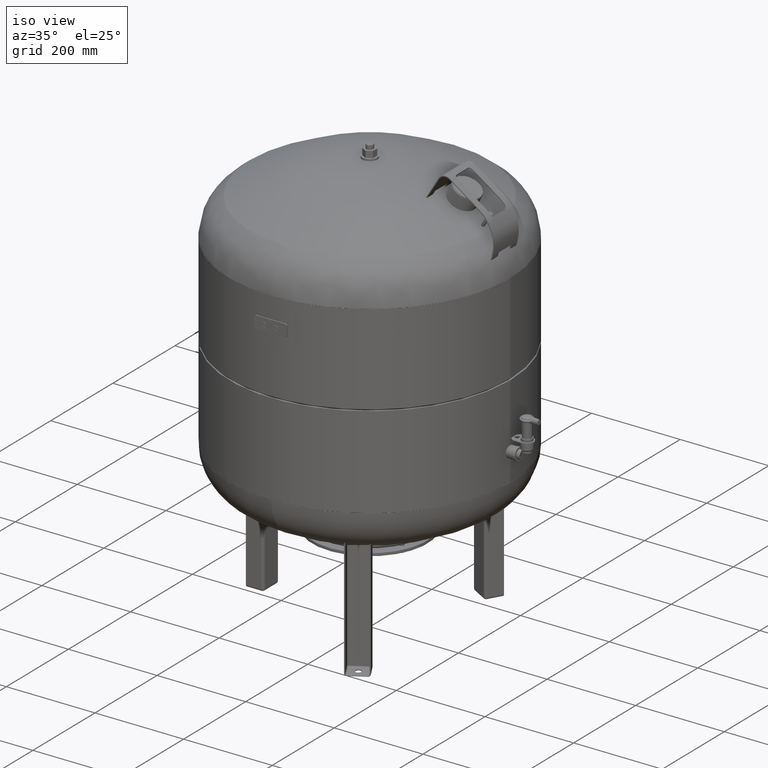
[diagram: clean part render]
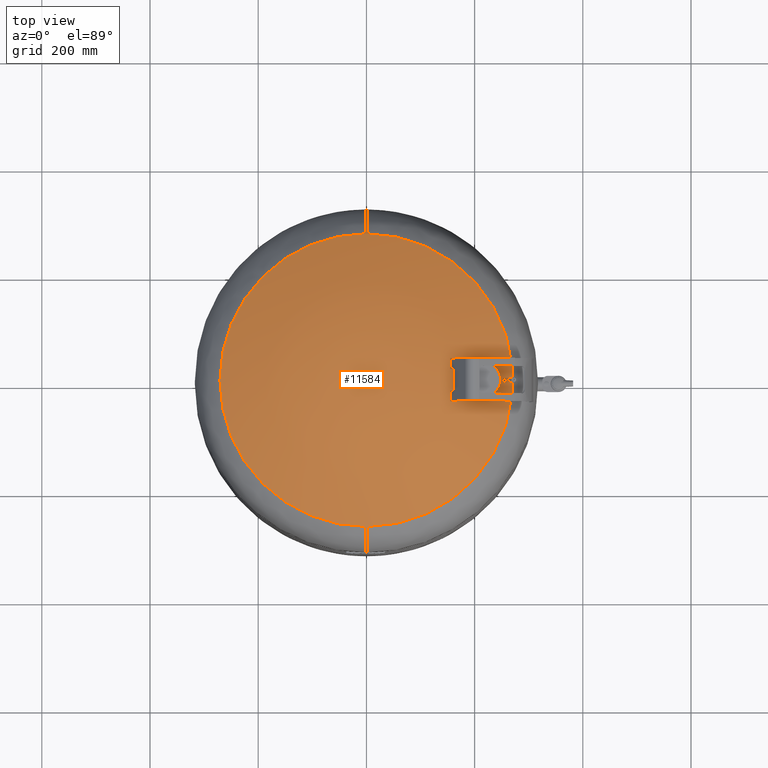
[diagram: tour spotlight — one face highlighted and labeled with its STEP entity id]
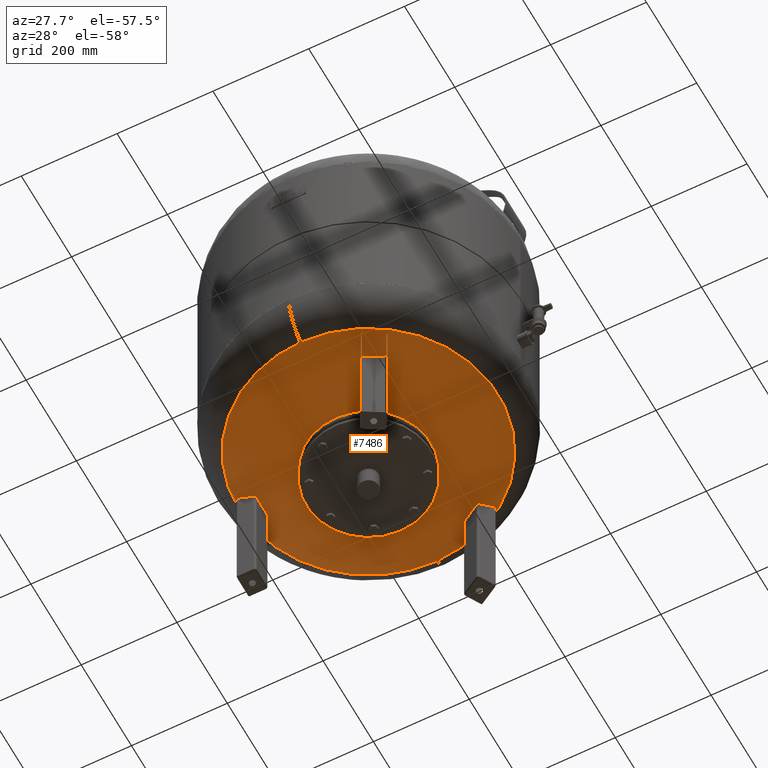
[diagram: tour spotlight — one face highlighted and labeled with its STEP entity id]
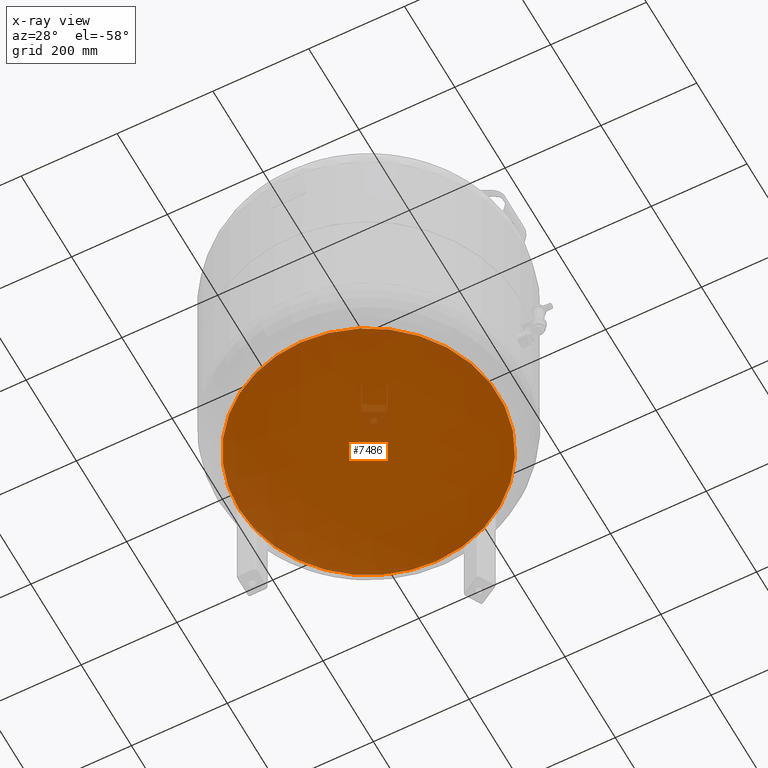
[diagram: x-ray of the same camera — body ghosted, this tour face saturated]
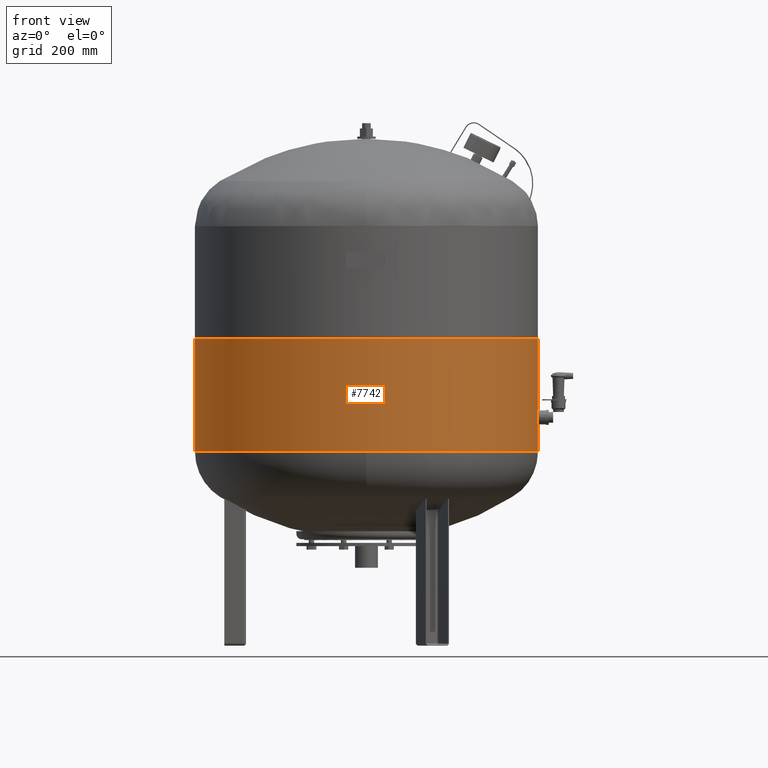
[diagram: tour spotlight — one face highlighted and labeled with its STEP entity id]
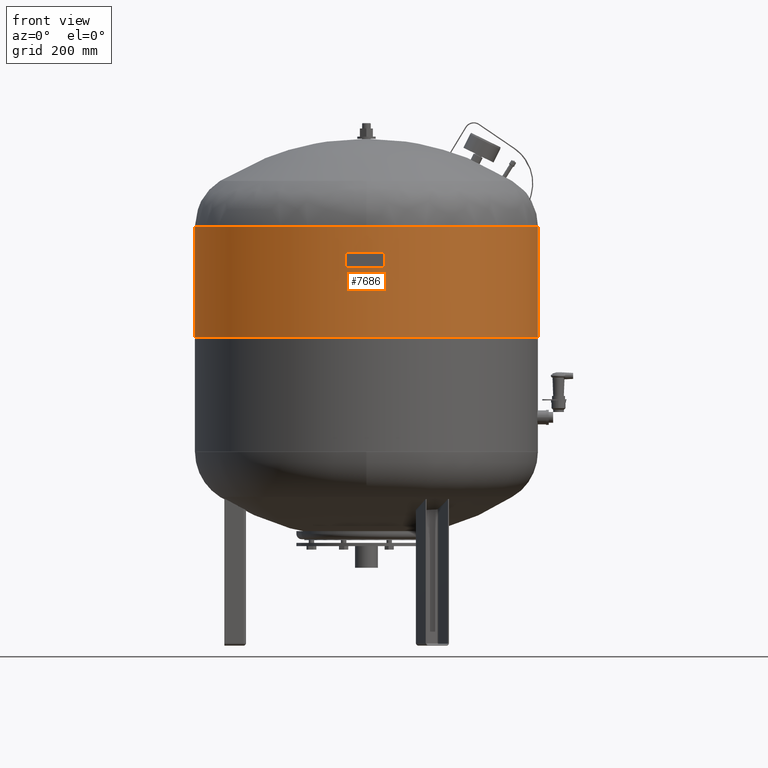
[diagram: tour spotlight — one face highlighted and labeled with its STEP entity id]
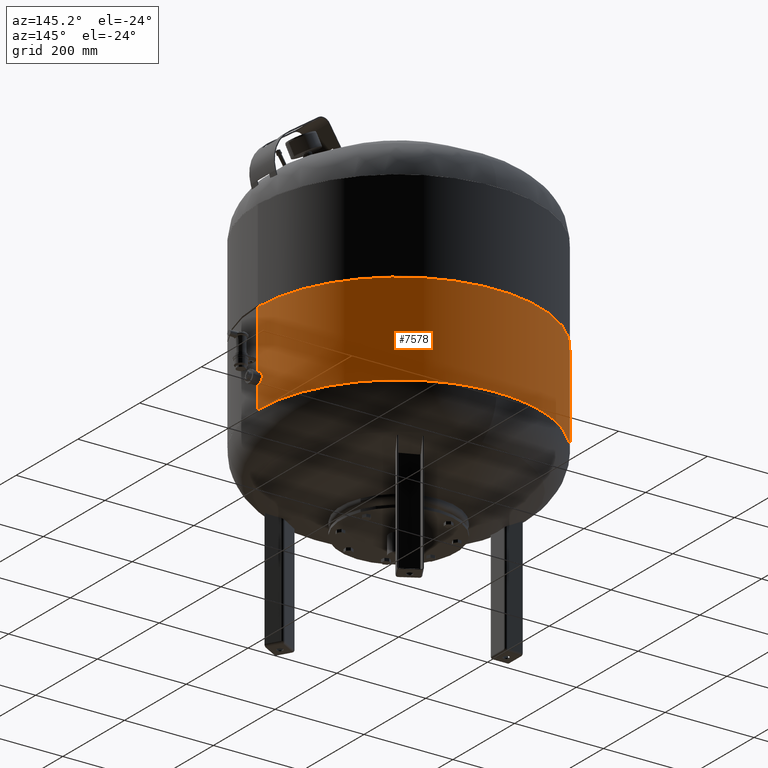
[diagram: tour spotlight — one face highlighted and labeled with its STEP entity id]
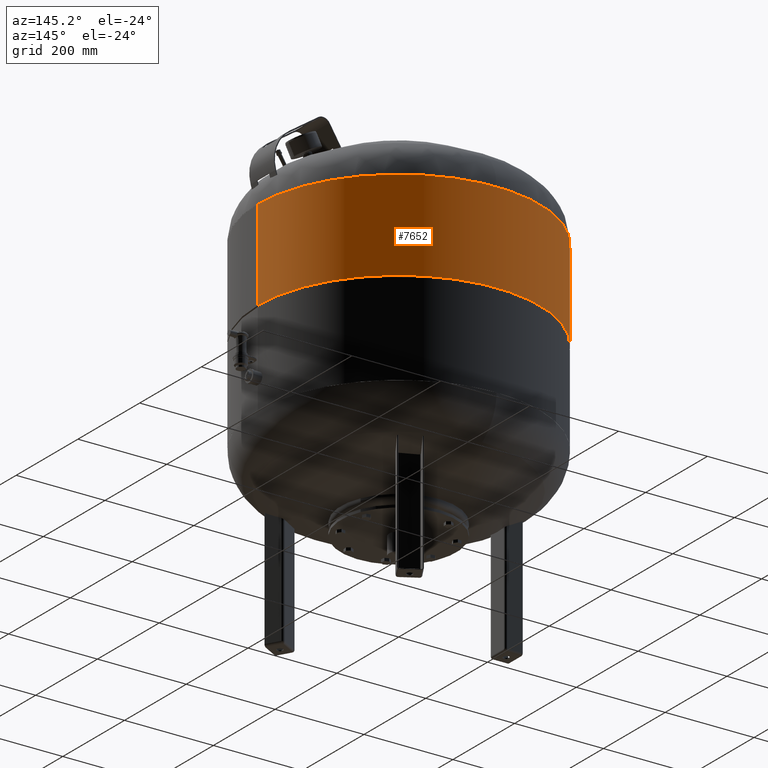
[diagram: tour spotlight — one face highlighted and labeled with its STEP entity id]
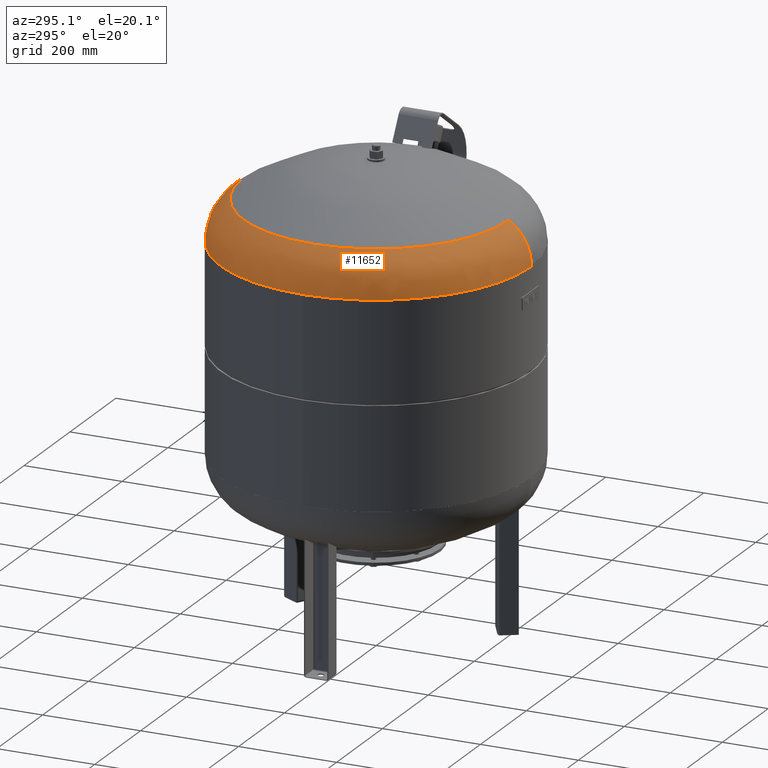
[diagram: tour spotlight — one face highlighted and labeled with its STEP entity id]
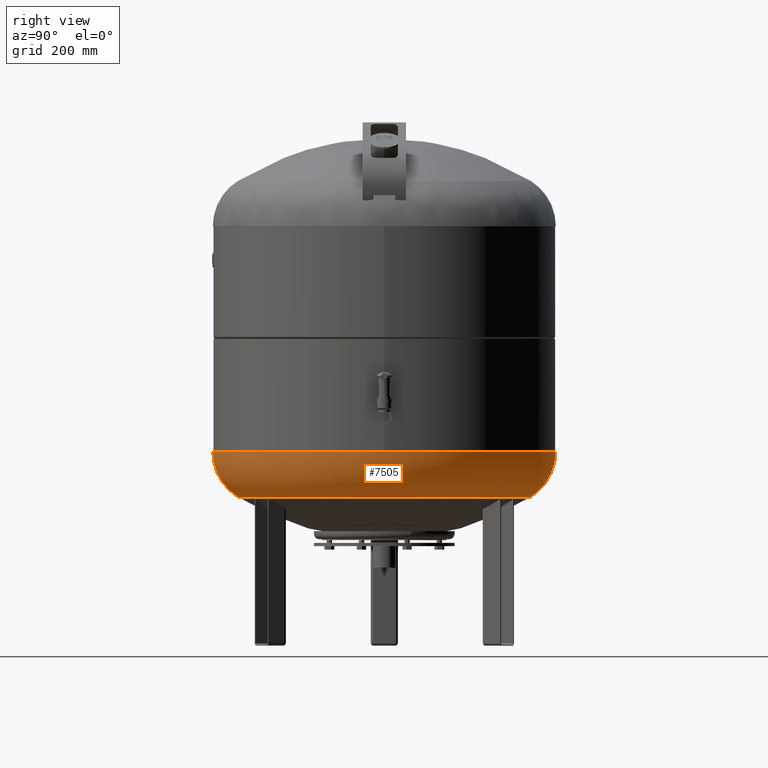
[diagram: tour spotlight — one face highlighted and labeled with its STEP entity id]
A machine part: a face-by-face anatomy tour. The part has 513 B-rep faces; the first image is the clean iso view, then the 8 largest visible faces are spotlighted one at a time (largest first), each with its STEP entity span.

Face 1 — top view, entity #11584. In plain terms, the highlighted face is a freeform B-spline surface patch.
Definition (entity closure, byte-faithful):
#11510=CARTESIAN_POINT('',(8.065826E-015,-270.639024390243830,859.086439681297520));
#11511=VERTEX_POINT('',#11510);
#11529=CARTESIAN_POINT('',(-2.507680E-014,270.639024390243830,859.086439681297520));
#11530=VERTEX_POINT('',#11529);
#11538=CARTESIAN_POINT('',(-7.495146E-015,-1.431249E-014,859.086439681297520));
#11539=DIRECTION('',(0.0,0.0,1.0));
#11540=DIRECTION('',(-1.0,0.0,0.0));
#11541=AXIS2_PLACEMENT_3D('',#11538,#11539,#11540);
#11542=CIRCLE('',#11541,270.639024390243830);
#11543=EDGE_CURVE('',#11511,#11530,#11542,.T.);
#11548=CARTESIAN_POINT('',(-229.211814269567920,270.639024390243780,793.099250446163070));
#11549=CARTESIAN_POINT('',(-319.553692100537090,-2.842171E-014,937.0));
#11550=CARTESIAN_POINT('',(-229.211814269567950,-270.639024390243830,793.099250446163180));
#11551=CARTESIAN_POINT('',(5.684342E-014,270.639024390243780,936.999999999999770));
#11552=CARTESIAN_POINT('',(5.684342E-014,8.431219E-015,1137.618000265392500));
#11553=CARTESIAN_POINT('',(2.842171E-014,-270.639024390243830,936.999999999999890));
#11554=CARTESIAN_POINT('',(229.211814269567920,270.639024390243780,793.099250446162960));
#11555=CARTESIAN_POINT('',(319.553692100536980,-2.842171E-014,936.999999999999770));
#11556=CARTESIAN_POINT('',(229.211814269567920,-270.639024390243830,793.099250446163070));
#11564=(BOUNDED_SURFACE()B_SPLINE_SURFACE(2,2,((#11548,#11551,#11554),(#11549,#11552,#11555),(#11550,#11553,#11556)),.UNSPECIFIED.,.F.,.F.,.U.)B_SPLINE_SURFACE_WITH_KNOTS((3,3),(3,3),(-0.560615186256406,0.560615186256406),(0.0,1.121230372512813),.UNSPECIFIED.)GEOMETRIC_REPRESENTATION_ITEM()RATIONAL_B_SPLINE_SURFACE(((1.0,0.846928172261881,1.0),(0.846928172261882,0.717287328970851,0.846928172261882),(1.0,0.846928172261881,1.0)))REPRESENTATION_ITEM('')SURFACE());
#11565=CARTESIAN_POINT('',(-270.639024390243830,-1.431249E-014,859.086439681297630));
#11566=VERTEX_POINT('',#11565);
#11567=CARTESIAN_POINT('',(-7.495146E-015,-1.431249E-014,859.086439681297520));
#11568=DIRECTION('',(0.0,0.0,1.0));
#11569=DIRECTION('',(-1.0,0.0,0.0));
#11570=AXIS2_PLACEMENT_3D('',#11567,#11568,#11569);
#11571=CIRCLE('',#11570,270.639024390243830);
#11572=EDGE_CURVE('',#11566,#11511,#11571,.T.);
#11573=ORIENTED_EDGE('',*,*,#11572,.T.);
#11574=ORIENTED_EDGE('',*,*,#11543,.T.);
#11575=CARTESIAN_POINT('',(-7.495146E-015,-1.431249E-014,859.086439681297520));
#11576=DIRECTION('',(0.0,0.0,1.0));
#11577=DIRECTION('',(-1.0,0.0,0.0));
#11578=AXIS2_PLACEMENT_3D('',#11575,#11576,#11577);
#11579=CIRCLE('',#11578,270.639024390243830);
#11580=EDGE_CURVE('',#11530,#11566,#11579,.T.);
#11581=ORIENTED_EDGE('',*,*,#11580,.T.);
#11582=EDGE_LOOP('',(#11573,#11574,#11581));
#11583=FACE_OUTER_BOUND('',#11582,.T.);
#11584=ADVANCED_FACE('',(#11583),#11564,.T.);

Face 2 — auxiliary view, entity #7486. An x-ray twin of the same camera follows (body ghosted, this face saturated) — the face is partly hidden behind the body. In plain terms, the highlighted spherical surface has radius 509 mm.
Definition (entity closure, byte-faithful):
#7425=CARTESIAN_POINT('',(8.065826E-015,-270.639024390243830,274.913560318702370));
#7426=VERTEX_POINT('',#7425);
#7442=CARTESIAN_POINT('',(-2.507680E-014,270.639024390243830,274.913560318702480));
#7443=VERTEX_POINT('',#7442);
#7451=CARTESIAN_POINT('',(-270.639024390243830,-1.431249E-014,274.913560318702420));
#7452=VERTEX_POINT('',#7451);
#7453=CARTESIAN_POINT('',(-7.495146E-015,-1.431249E-014,274.913560318702420));
#7454=DIRECTION('',(0.0,0.0,1.0));
#7455=DIRECTION('',(-1.0,0.0,0.0));
#7456=AXIS2_PLACEMENT_3D('',#7453,#7454,#7455);
#7457=CIRCLE('',#7456,270.639024390243830);
#7458=EDGE_CURVE('',#7443,#7452,#7457,.T.);
#7460=CARTESIAN_POINT('',(-7.495146E-015,-1.431249E-014,274.913560318702420));
#7461=DIRECTION('',(0.0,0.0,1.0));
#7462=DIRECTION('',(-1.0,0.0,0.0));
#7463=AXIS2_PLACEMENT_3D('',#7460,#7461,#7462);
#7464=CIRCLE('',#7463,270.639024390243830);
#7465=EDGE_CURVE('',#7452,#7426,#7464,.T.);
#7470=CARTESIAN_POINT('',(-1.005746E-013,-9.350178E-014,706.0));
#7471=DIRECTION('',(0.0,-1.0,0.0));
#7472=DIRECTION('',(1.0,0.0,0.0));
#7473=AXIS2_PLACEMENT_3D('',#7470,#7471,#7472);
#7474=SPHERICAL_SURFACE('',#7473,509.000000000000060);
#7475=ORIENTED_EDGE('',*,*,#7465,.F.);
#7476=ORIENTED_EDGE('',*,*,#7458,.F.);
#7477=CARTESIAN_POINT('',(-7.495146E-015,-1.431249E-014,274.913560318702420));
#7478=DIRECTION('',(0.0,0.0,1.0));
#7479=DIRECTION('',(-1.0,0.0,0.0));
#7480=AXIS2_PLACEMENT_3D('',#7477,#7478,#7479);
#7481=CIRCLE('',#7480,270.639024390243830);
#7482=EDGE_CURVE('',#7426,#7443,#7481,.T.);
#7483=ORIENTED_EDGE('',*,*,#7482,.F.);
#7484=EDGE_LOOP('',(#7475,#7476,#7483));
#7485=FACE_OUTER_BOUND('',#7484,.T.);
#7486=ADVANCED_FACE('',(#7485),#7474,.T.);

Face 3 — front view, entity #7742. In plain terms, the highlighted cylindrical surface (partial cylindrical patch) has radius 317 mm, axis along (-0, 0, -1).
Definition (entity closure, byte-faithful):
#7542=CARTESIAN_POINT('',(317.0,3.882130E-014,359.0));
#7543=VERTEX_POINT('',#7542);
#7544=CARTESIAN_POINT('',(316.999999999999940,3.882130E-014,567.0));
#7545=VERTEX_POINT('',#7544);
#7546=CARTESIAN_POINT('',(317.0,3.882130E-014,359.0));
#7547=DIRECTION('',(0.0,0.0,1.0));
#7548=VECTOR('',#7547,208.0);
#7549=LINE('',#7546,#7548);
#7550=EDGE_CURVE('',#7543,#7545,#7549,.T.);
#7552=CARTESIAN_POINT('',(-317.0,-1.282117E-018,359.0));
#7553=VERTEX_POINT('',#7552);
#7561=CARTESIAN_POINT('',(-317.0,-1.282117E-018,567.000000000000110));
#7562=VERTEX_POINT('',#7561);
#7563=CARTESIAN_POINT('',(-317.0,-1.282117E-018,359.0));
#7564=DIRECTION('',(0.0,0.0,1.0));
#7565=VECTOR('',#7564,208.000000000000110);
#7566=LINE('',#7563,#7565);
#7567=EDGE_CURVE('',#7553,#7562,#7566,.T.);
#7710=CARTESIAN_POINT('',(-4.065149E-031,4.830380E-046,567.0));
#7711=DIRECTION('',(0.0,0.0,-1.0));
#7712=DIRECTION('',(1.0,0.0,0.0));
#7713=AXIS2_PLACEMENT_3D('',#7710,#7711,#7712);
#7714=CIRCLE('',#7713,316.999999999999940);
#7715=EDGE_CURVE('',#7545,#7562,#7714,.T.);
#7725=CARTESIAN_POINT('',(-4.392344E-015,1.021843E-030,463.0));
#7726=DIRECTION('',(-4.223408E-017,9.825415E-033,-1.0));
#7727=DIRECTION('',(1.0,0.0,0.0));
#7728=AXIS2_PLACEMENT_3D('',#7725,#7726,#7727);
#7729=CYLINDRICAL_SURFACE('',#7728,317.0);
#7730=ORIENTED_EDGE('',*,*,#7550,.T.);
#7731=ORIENTED_EDGE('',*,*,#7715,.T.);
#7732=ORIENTED_EDGE('',*,*,#7567,.F.);
#7733=CARTESIAN_POINT('',(-8.784689E-015,2.043686E-030,359.0));
#7734=DIRECTION('',(0.0,0.0,-1.0));
#7735=DIRECTION('',(1.0,0.0,0.0));
#7736=AXIS2_PLACEMENT_3D('',#7733,#7734,#7735);
#7737=CIRCLE('',#7736,317.0);
#7738=EDGE_CURVE('',#7543,#7553,#7737,.T.);
#7739=ORIENTED_EDGE('',*,*,#7738,.F.);
#7740=EDGE_LOOP('',(#7730,#7731,#7732,#7739));
#7741=FACE_OUTER_BOUND('',#7740,.T.);
#7742=ADVANCED_FACE('',(#7741),#7729,.T.);

Face 4 — front view, entity #7686. In plain terms, the highlighted cylindrical surface (partial cylindrical patch) has radius 317 mm, axis along (-0, 0, -1).
Definition (entity closure, byte-faithful):
#7586=CARTESIAN_POINT('',(316.999999999999830,3.882130E-014,570.500000000000000));
#7587=VERTEX_POINT('',#7586);
#7603=CARTESIAN_POINT('',(-316.999999999999940,-1.282117E-018,570.500000000000000));
#7604=VERTEX_POINT('',#7603);
#7626=CARTESIAN_POINT('',(317.0,3.882130E-014,775.0));
#7627=VERTEX_POINT('',#7626);
#7628=CARTESIAN_POINT('',(316.999999999999830,3.882130E-014,570.500000000000000));
#7629=DIRECTION('',(0.0,0.0,1.0));
#7630=VECTOR('',#7629,204.500000000000000);
#7631=LINE('',#7628,#7630);
#7632=EDGE_CURVE('',#7587,#7627,#7631,.T.);
#7635=CARTESIAN_POINT('',(-316.999999999999940,-1.282117E-018,775.000000000000110));
#7636=VERTEX_POINT('',#7635);
#7637=CARTESIAN_POINT('',(-316.999999999999940,-1.282117E-018,570.500000000000000));
#7638=DIRECTION('',(0.0,0.0,1.0));
#7639=VECTOR('',#7638,204.500000000000110);
#7640=LINE('',#7637,#7639);
#7641=EDGE_CURVE('',#7604,#7636,#7640,.T.);
#7658=CARTESIAN_POINT('',(8.784689E-015,-2.043686E-030,775.000000000000110));
#7659=DIRECTION('',(0.0,0.0,-1.0));
#7660=DIRECTION('',(1.0,0.0,0.0));
#7661=AXIS2_PLACEMENT_3D('',#7658,#7659,#7660);
#7662=CIRCLE('',#7661,317.0);
#7663=EDGE_CURVE('',#7627,#7636,#7662,.T.);
#7669=CARTESIAN_POINT('',(5.224356E-015,-1.215404E-030,690.700000000000050));
#7670=DIRECTION('',(-4.223408E-017,9.825415E-033,-1.0));
#7671=DIRECTION('',(1.0,0.0,0.0));
#7672=AXIS2_PLACEMENT_3D('',#7669,#7670,#7671);
#7673=CYLINDRICAL_SURFACE('',#7672,316.999999999999940);
#7674=ORIENTED_EDGE('',*,*,#7632,.T.);
#7675=ORIENTED_EDGE('',*,*,#7663,.T.);
#7676=ORIENTED_EDGE('',*,*,#7641,.F.);
#7677=CARTESIAN_POINT('',(1.478193E-016,-3.438895E-032,570.500000000000000));
#7678=DIRECTION('',(0.0,0.0,-1.0));
#7679=DIRECTION('',(1.0,0.0,0.0));
#7680=AXIS2_PLACEMENT_3D('',#7677,#7678,#7679);
#7681=CIRCLE('',#7680,316.999999999999830);
#7682=EDGE_CURVE('',#7587,#7604,#7681,.T.);
#7683=ORIENTED_EDGE('',*,*,#7682,.F.);
#7684=EDGE_LOOP('',(#7674,#7675,#7676,#7683));
#7685=FACE_OUTER_BOUND('',#7684,.T.);
#7686=ADVANCED_FACE('',(#7685),#7673,.T.);

Face 5 — auxiliary view, entity #7578. In plain terms, the highlighted cylindrical surface (partial cylindrical patch) has radius 317 mm, axis along (-0, 0, -1).
Definition (entity closure, byte-faithful):
#7537=CARTESIAN_POINT('',(-4.392344E-015,1.021843E-030,463.0));
#7538=DIRECTION('',(-4.223408E-017,9.825415E-033,-1.0));
#7539=DIRECTION('',(1.0,0.0,0.0));
#7540=AXIS2_PLACEMENT_3D('',#7537,#7538,#7539);
#7541=CYLINDRICAL_SURFACE('',#7540,317.0);
#7542=CARTESIAN_POINT('',(317.0,3.882130E-014,359.0));
#7543=VERTEX_POINT('',#7542);
#7544=CARTESIAN_POINT('',(316.999999999999940,3.882130E-014,567.0));
#7545=VERTEX_POINT('',#7544);
#7546=CARTESIAN_POINT('',(317.0,3.882130E-014,359.0));
#7547=DIRECTION('',(0.0,0.0,1.0));
#7548=VECTOR('',#7547,208.0);
#7549=LINE('',#7546,#7548);
#7550=EDGE_CURVE('',#7543,#7545,#7549,.T.);
#7551=ORIENTED_EDGE('',*,*,#7550,.F.);
#7552=CARTESIAN_POINT('',(-317.0,-1.282117E-018,359.0));
#7553=VERTEX_POINT('',#7552);
#7554=CARTESIAN_POINT('',(-8.784689E-015,2.043686E-030,359.0));
#7555=DIRECTION('',(0.0,0.0,-1.0));
#7556=DIRECTION('',(1.0,0.0,0.0));
#7557=AXIS2_PLACEMENT_3D('',#7554,#7555,#7556);
#7558=CIRCLE('',#7557,317.0);
#7559=EDGE_CURVE('',#7553,#7543,#7558,.T.);
#7560=ORIENTED_EDGE('',*,*,#7559,.F.);
#7561=CARTESIAN_POINT('',(-317.0,-1.282117E-018,567.000000000000110));
#7562=VERTEX_POINT('',#7561);
#7563=CARTESIAN_POINT('',(-317.0,-1.282117E-018,359.0));
#7564=DIRECTION('',(0.0,0.0,1.0));
#7565=VECTOR('',#7564,208.000000000000110);
#7566=LINE('',#7563,#7565);
#7567=EDGE_CURVE('',#7553,#7562,#7566,.T.);
#7568=ORIENTED_EDGE('',*,*,#7567,.T.);
#7569=CARTESIAN_POINT('',(-4.065149E-031,4.830380E-046,567.0));
#7570=DIRECTION('',(0.0,0.0,-1.0));
#7571=DIRECTION('',(1.0,0.0,0.0));
#7572=AXIS2_PLACEMENT_3D('',#7569,#7570,#7571);
#7573=CIRCLE('',#7572,316.999999999999940);
#7574=EDGE_CURVE('',#7562,#7545,#7573,.T.);
#7575=ORIENTED_EDGE('',*,*,#7574,.T.);
#7576=EDGE_LOOP('',(#7551,#7560,#7568,#7575));
#7577=FACE_OUTER_BOUND('',#7576,.T.);
#7578=ADVANCED_FACE('',(#7577),#7541,.T.);

Face 6 — auxiliary view, entity #7652. In plain terms, the highlighted cylindrical surface (partial cylindrical patch) has radius 317 mm, axis along (-0, 0, -1).
Definition (entity closure, byte-faithful):
#7586=CARTESIAN_POINT('',(316.999999999999830,3.882130E-014,570.500000000000000));
#7587=VERTEX_POINT('',#7586);
#7603=CARTESIAN_POINT('',(-316.999999999999940,-1.282117E-018,570.500000000000000));
#7604=VERTEX_POINT('',#7603);
#7611=CARTESIAN_POINT('',(1.478193E-016,-3.438895E-032,570.500000000000000));
#7612=DIRECTION('',(0.0,0.0,-1.0));
#7613=DIRECTION('',(1.0,0.0,0.0));
#7614=AXIS2_PLACEMENT_3D('',#7611,#7612,#7613);
#7615=CIRCLE('',#7614,316.999999999999830);
#7616=EDGE_CURVE('',#7604,#7587,#7615,.T.);
#7621=CARTESIAN_POINT('',(5.224356E-015,-1.215404E-030,690.700000000000050));
#7622=DIRECTION('',(-4.223408E-017,9.825415E-033,-1.0));
#7623=DIRECTION('',(1.0,0.0,0.0));
#7624=AXIS2_PLACEMENT_3D('',#7621,#7622,#7623);
#7625=CYLINDRICAL_SURFACE('',#7624,316.999999999999940);
#7626=CARTESIAN_POINT('',(317.0,3.882130E-014,775.0));
#7627=VERTEX_POINT('',#7626);
#7628=CARTESIAN_POINT('',(316.999999999999830,3.882130E-014,570.500000000000000));
#7629=DIRECTION('',(0.0,0.0,1.0));
#7630=VECTOR('',#7629,204.500000000000000);
#7631=LINE('',#7628,#7630);
#7632=EDGE_CURVE('',#7587,#7627,#7631,.T.);
#7633=ORIENTED_EDGE('',*,*,#7632,.F.);
#7634=ORIENTED_EDGE('',*,*,#7616,.F.);
#7635=CARTESIAN_POINT('',(-316.999999999999940,-1.282117E-018,775.000000000000110));
#7636=VERTEX_POINT('',#7635);
#7637=CARTESIAN_POINT('',(-316.999999999999940,-1.282117E-018,570.500000000000000));
#7638=DIRECTION('',(0.0,0.0,1.0));
#7639=VECTOR('',#7638,204.500000000000110);
#7640=LINE('',#7637,#7639);
#7641=EDGE_CURVE('',#7604,#7636,#7640,.T.);
#7642=ORIENTED_EDGE('',*,*,#7641,.T.);
#7643=CARTESIAN_POINT('',(8.784689E-015,-2.043686E-030,775.000000000000110));
#7644=DIRECTION('',(0.0,0.0,-1.0));
#7645=DIRECTION('',(1.0,0.0,0.0));
#7646=AXIS2_PLACEMENT_3D('',#7643,#7644,#7645);
#7647=CIRCLE('',#7646,317.0);
#7648=EDGE_CURVE('',#7636,#7627,#7647,.T.);
#7649=ORIENTED_EDGE('',*,*,#7648,.T.);
#7650=EDGE_LOOP('',(#7633,#7634,#7642,#7649));
#7651=FACE_OUTER_BOUND('',#7650,.T.);
#7652=ADVANCED_FACE('',(#7651),#7625,.T.);

Face 7 — auxiliary view, entity #11652. In plain terms, the highlighted face is a freeform B-spline surface patch.
Definition (entity closure, byte-faithful):
#11413=CARTESIAN_POINT('',(-317.000000000000060,-2.971473E-014,775.240550627371480));
#11414=VERTEX_POINT('',#11413);
#11438=CARTESIAN_POINT('',(9.762260E-031,-317.000000000000110,775.240550627371590));
#11439=VERTEX_POINT('',#11438);
#11447=CARTESIAN_POINT('',(-1.556097E-014,-2.971473E-014,775.240550627371360));
#11448=DIRECTION('',(0.0,0.0,1.0));
#11449=DIRECTION('',(-1.0,0.0,0.0));
#11450=AXIS2_PLACEMENT_3D('',#11447,#11448,#11449);
#11451=CIRCLE('',#11450,317.000000000000060);
#11452=EDGE_CURVE('',#11414,#11439,#11451,.T.);
#11510=CARTESIAN_POINT('',(8.065826E-015,-270.639024390243830,859.086439681297520));
#11511=VERTEX_POINT('',#11510);
#11512=CARTESIAN_POINT('',(0.0,-218.000000000000030,775.240550627371480));
#11513=DIRECTION('',(-1.0,0.0,0.0));
#11514=DIRECTION('',(0.0,-1.0,0.0));
#11515=AXIS2_PLACEMENT_3D('',#11512,#11513,#11514);
#11516=CIRCLE('',#11515,99.0);
#11517=EDGE_CURVE('',#11439,#11511,#11516,.T.);
#11520=CARTESIAN_POINT('',(-3.882002E-014,317.0,775.240550627371140));
#11521=VERTEX_POINT('',#11520);
#11529=CARTESIAN_POINT('',(-2.507680E-014,270.639024390243830,859.086439681297520));
#11530=VERTEX_POINT('',#11529);
#11531=CARTESIAN_POINT('',(-2.669642E-014,217.999999999999970,775.240550627371250));
#11532=DIRECTION('',(1.0,0.0,0.0));
#11533=DIRECTION('',(0.0,1.0,0.0));
#11534=AXIS2_PLACEMENT_3D('',#11531,#11532,#11533);
#11535=CIRCLE('',#11534,99.0);
#11536=EDGE_CURVE('',#11521,#11530,#11535,.T.);
#11565=CARTESIAN_POINT('',(-270.639024390243830,-1.431249E-014,859.086439681297630));
#11566=VERTEX_POINT('',#11565);
#11567=CARTESIAN_POINT('',(-7.495146E-015,-1.431249E-014,859.086439681297520));
#11568=DIRECTION('',(0.0,0.0,1.0));
#11569=DIRECTION('',(-1.0,0.0,0.0));
#11570=AXIS2_PLACEMENT_3D('',#11567,#11568,#11569);
#11571=CIRCLE('',#11570,270.639024390243830);
#11572=EDGE_CURVE('',#11566,#11511,#11571,.T.);
#11575=CARTESIAN_POINT('',(-7.495146E-015,-1.431249E-014,859.086439681297520));
#11576=DIRECTION('',(0.0,0.0,1.0));
#11577=DIRECTION('',(-1.0,0.0,0.0));
#11578=AXIS2_PLACEMENT_3D('',#11575,#11576,#11577);
#11579=CIRCLE('',#11578,270.639024390243830);
#11580=EDGE_CURVE('',#11530,#11566,#11579,.T.);
#11585=CARTESIAN_POINT('',(-1.457282E-014,119.0,775.240550627370910));
#11586=CARTESIAN_POINT('',(-5.049191E-015,118.999999999999720,874.240550627371250));
#11587=CARTESIAN_POINT('',(-1.717279E-014,217.999999999999970,874.240550627371250));
#11588=CARTESIAN_POINT('',(-2.929640E-014,317.000000000000230,874.240550627371250));
#11589=CARTESIAN_POINT('',(-3.882002E-014,316.999999999999940,775.240550627370910));
#11590=CARTESIAN_POINT('',(-119.000000000000010,118.999999999999940,775.240550627370910));
#11591=CARTESIAN_POINT('',(-118.999999999999690,118.999999999999660,874.240550627371250));
#11592=CARTESIAN_POINT('',(-217.999999999999940,217.999999999999890,874.240550627371250));
#11593=CARTESIAN_POINT('',(-317.000000000000230,317.000000000000110,874.240550627371250));
#11594=CARTESIAN_POINT('',(-317.0,316.999999999999890,775.240550627370910));
#11595=CARTESIAN_POINT('',(-119.000000000000030,-4.428754E-014,775.240550627370910));
#11596=CARTESIAN_POINT('',(-118.999999999999720,-2.610154E-014,874.240550627371250));
#11597=CARTESIAN_POINT('',(-217.999999999999970,-3.822514E-014,874.240550627371250));
#11598=CARTESIAN_POINT('',(-317.000000000000230,-5.034875E-014,874.240550627371250));
#11599=CARTESIAN_POINT('',(-317.0,-6.853475E-014,775.240550627371020));
#11600=CARTESIAN_POINT('',(-118.999999999999990,-119.000000000000040,775.240550627370910));
#11601=CARTESIAN_POINT('',(-118.999999999999660,-118.999999999999720,874.240550627371250));
#11602=CARTESIAN_POINT('',(-217.999999999999890,-217.999999999999940,874.240550627371250));
#11603=CARTESIAN_POINT('',(-317.000000000000110,-317.000000000000230,874.240550627371250));
#11604=CARTESIAN_POINT('',(-316.999999999999890,-317.0,775.240550627371020));
#11605=CARTESIAN_POINT('',(1.457282E-014,-119.000000000000060,775.240550627370910));
#11606=CARTESIAN_POINT('',(2.409644E-014,-118.999999999999730,874.240550627371250));
#11607=CARTESIAN_POINT('',(3.622004E-014,-217.999999999999970,874.240550627371250));
#11608=CARTESIAN_POINT('',(4.834365E-014,-317.000000000000230,874.240550627371250));
#11609=CARTESIAN_POINT('',(3.882002E-014,-317.000000000000060,775.240550627371140));
#11610=CARTESIAN_POINT('',(119.000000000000010,-119.000000000000010,775.240550627370910));
#11611=CARTESIAN_POINT('',(118.999999999999720,-118.999999999999690,874.240550627371250));
#11612=CARTESIAN_POINT('',(217.999999999999940,-217.999999999999890,874.240550627371250));
#11613=CARTESIAN_POINT('',(317.000000000000230,-317.000000000000170,874.240550627371250));
#11614=CARTESIAN_POINT('',(317.0,-316.999999999999940,775.240550627371020));
#11615=CARTESIAN_POINT('',(119.000000000000030,-1.514191E-014,775.240550627370910));
#11616=CARTESIAN_POINT('',(118.999999999999730,3.044092E-015,874.240550627371250));
#11617=CARTESIAN_POINT('',(217.999999999999970,1.516769E-014,874.240550627371250));
#11618=CARTESIAN_POINT('',(317.000000000000230,2.729130E-014,874.240550627371250));
#11619=CARTESIAN_POINT('',(317.0,9.105293E-015,775.240550627371020));
#11620=CARTESIAN_POINT('',(118.999999999999990,118.999999999999990,775.240550627370910));
#11621=CARTESIAN_POINT('',(118.999999999999690,118.999999999999690,874.240550627371250));
#11622=CARTESIAN_POINT('',(217.999999999999890,217.999999999999940,874.240550627371250));
#11623=CARTESIAN_POINT('',(317.000000000000110,317.000000000000170,874.240550627371250));
#11624=CARTESIAN_POINT('',(316.999999999999890,316.999999999999940,775.240550627370910));
#11625=CARTESIAN_POINT('',(-1.457282E-014,119.0,775.240550627370910));
#11626=CARTESIAN_POINT('',(-5.049191E-015,118.999999999999720,874.240550627371250));
#11627=CARTESIAN_POINT('',(-1.717279E-014,217.999999999999970,874.240550627371250));
#11628=CARTESIAN_POINT('',(-2.929640E-014,317.000000000000230,874.240550627371250));
#11629=CARTESIAN_POINT('',(-3.882002E-014,316.999999999999940,775.240550627370910));
#11637=(BOUNDED_SURFACE()B_SPLINE_SURFACE(2,2,((#11585,#11590,#11595,#11600,#11605,#11610,#11615,#11620,#11625),(#11586,#11591,#11596,#11601,#11606,#11611,#11616,#11621,#11626),(#11587,#11592,#11597,#11602,#11607,#11612,#11617,#11622,#11627),(#11588,#11593,#11598,#11603,#11608,#11613,#11618,#11623,#11628),(#11589,#11594,#11599,#11604,#11609,#11614,#11619,#11624,#11629)),.UNSPECIFIED.,.F.,.T.,.U.)B_SPLINE_SURFACE_WITH_KNOTS((3,2,3),(3,2,2,2,3),(-3.141592653589796,-1.570796326794897,3.192934E-015),(0.0,1.570796326794897,3.141592653589793,4.712388980384690,6.283185307179586),.UNSPECIFIED.)GEOMETRIC_REPRESENTATION_ITEM()RATIONAL_B_SPLINE_SURFACE(((1.0,0.707106781186548,1.0,0.707106781186548,1.0,0.707106781186548,1.0,0.707106781186548,1.0),(0.707106781186546,0.499999999999999,0.707106781186546,0.499999999999999,0.707106781186546,0.499999999999999,0.707106781186546,0.499999999999999,0.707106781186546),(1.0,0.707106781186548,1.0,0.707106781186548,1.0,0.707106781186548,1.0,0.707106781186548,1.0),(0.707106781186547,0.499999999999999,0.707106781186547,0.499999999999999,0.707106781186547,0.499999999999999,0.707106781186547,0.499999999999999,0.707106781186547),(1.0,0.707106781186548,1.0,0.707106781186548,1.0,0.707106781186548,1.0,0.707106781186548,1.0)))REPRESENTATION_ITEM('')SURFACE());
#11638=ORIENTED_EDGE('',*,*,#11517,.T.);
#11639=ORIENTED_EDGE('',*,*,#11572,.F.);
#11640=ORIENTED_EDGE('',*,*,#11580,.F.);
#11641=ORIENTED_EDGE('',*,*,#11536,.F.);
#11642=CARTESIAN_POINT('',(-1.556097E-014,-2.971473E-014,775.240550627371360));
#11643=DIRECTION('',(0.0,0.0,1.0));
#11644=DIRECTION('',(-1.0,0.0,0.0));
#11645=AXIS2_PLACEMENT_3D('',#11642,#11643,#11644);
#11646=CIRCLE('',#11645,317.000000000000060);
#11647=EDGE_CURVE('',#11521,#11414,#11646,.T.);
#11648=ORIENTED_EDGE('',*,*,#11647,.T.);
#11649=ORIENTED_EDGE('',*,*,#11452,.T.);
#11650=EDGE_LOOP('',(#11638,#11639,#11640,#11641,#11648,#11649));
#11651=FACE_OUTER_BOUND('',#11650,.T.);
#11652=ADVANCED_FACE('',(#11651),#11637,.T.);

Face 8 — right view, entity #7505. In plain terms, the highlighted toroidal blend (fillet) surface has major radius 218 mm and minor (blend) radius 99 mm.
Definition (entity closure, byte-faithful):
#7391=CARTESIAN_POINT('',(317.0,9.105293E-015,358.759449372628640));
#7392=VERTEX_POINT('',#7391);
#7399=CARTESIAN_POINT('',(-3.882002E-014,317.0,358.759449372628690));
#7400=VERTEX_POINT('',#7399);
#7401=CARTESIAN_POINT('',(-1.556097E-014,-2.971473E-014,358.759449372628640));
#7402=DIRECTION('',(0.0,0.0,1.0));
#7403=DIRECTION('',(-1.0,0.0,0.0));
#7404=AXIS2_PLACEMENT_3D('',#7401,#7402,#7403);
#7405=CIRCLE('',#7404,317.000000000000060);
#7406=EDGE_CURVE('',#7392,#7400,#7405,.T.);
#7423=CARTESIAN_POINT('',(-3.021869E-030,-317.000000000000110,358.759449372628580));
#7424=VERTEX_POINT('',#7423);
#7425=CARTESIAN_POINT('',(8.065826E-015,-270.639024390243830,274.913560318702370));
#7426=VERTEX_POINT('',#7425);
#7427=CARTESIAN_POINT('',(0.0,-218.000000000000030,358.759449372628580));
#7428=DIRECTION('',(1.0,0.0,0.0));
#7429=DIRECTION('',(0.0,-1.0,0.0));
#7430=AXIS2_PLACEMENT_3D('',#7427,#7428,#7429);
#7431=CIRCLE('',#7430,99.0);
#7432=EDGE_CURVE('',#7424,#7426,#7431,.T.);
#7442=CARTESIAN_POINT('',(-2.507680E-014,270.639024390243830,274.913560318702480));
#7443=VERTEX_POINT('',#7442);
#7444=CARTESIAN_POINT('',(-2.669642E-014,217.999999999999970,358.759449372628690));
#7445=DIRECTION('',(-1.0,0.0,0.0));
#7446=DIRECTION('',(0.0,1.0,0.0));
#7447=AXIS2_PLACEMENT_3D('',#7444,#7445,#7446);
#7448=CIRCLE('',#7447,99.0);
#7449=EDGE_CURVE('',#7400,#7443,#7448,.T.);
#7477=CARTESIAN_POINT('',(-7.495146E-015,-1.431249E-014,274.913560318702420));
#7478=DIRECTION('',(0.0,0.0,1.0));
#7479=DIRECTION('',(-1.0,0.0,0.0));
#7480=AXIS2_PLACEMENT_3D('',#7477,#7478,#7479);
#7481=CIRCLE('',#7480,270.639024390243830);
#7482=EDGE_CURVE('',#7426,#7443,#7481,.T.);
#7487=CARTESIAN_POINT('',(0.0,-2.971473E-014,358.759449372628640));
#7488=DIRECTION('',(-9.619823E-017,-1.836970E-016,1.0));
#7489=DIRECTION('',(0.0,-1.0,0.0));
#7490=AXIS2_PLACEMENT_3D('',#7487,#7488,#7489);
#7491=TOROIDAL_SURFACE('',#7490,218.0,99.0);
#7492=ORIENTED_EDGE('',*,*,#7432,.T.);
#7493=ORIENTED_EDGE('',*,*,#7482,.T.);
#7494=ORIENTED_EDGE('',*,*,#7449,.F.);
#7495=ORIENTED_EDGE('',*,*,#7406,.F.);
#7496=CARTESIAN_POINT('',(-1.556097E-014,-2.971473E-014,358.759449372628640));
#7497=DIRECTION('',(0.0,0.0,1.0));
#7498=DIRECTION('',(-1.0,0.0,0.0));
#7499=AXIS2_PLACEMENT_3D('',#7496,#7497,#7498);
#7500=CIRCLE('',#7499,317.000000000000060);
#7501=EDGE_CURVE('',#7424,#7392,#7500,.T.);
#7502=ORIENTED_EDGE('',*,*,#7501,.F.);
#7503=EDGE_LOOP('',(#7492,#7493,#7494,#7495,#7502));
#7504=FACE_OUTER_BOUND('',#7503,.T.);
#7505=ADVANCED_FACE('',(#7504),#7491,.T.);